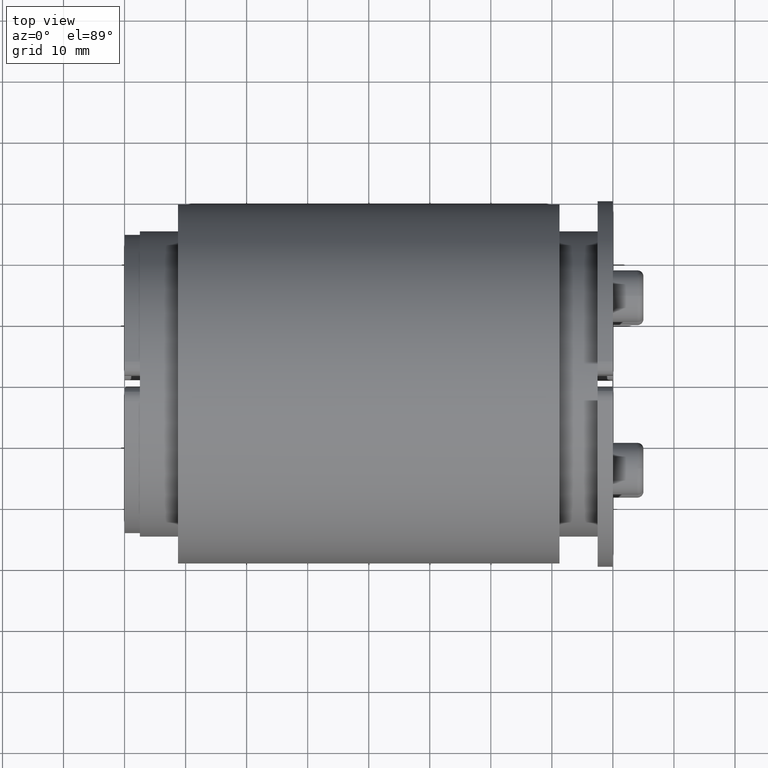
[diagram: clean part render]
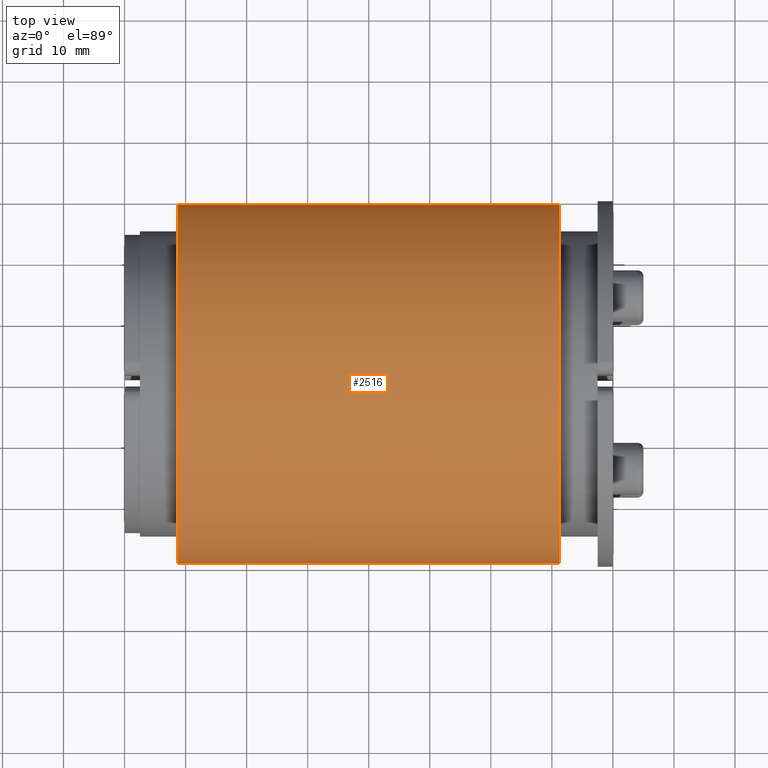
[diagram: same view with one face highlighted and labeled with its STEP entity id]
A machine part, top view. The second image highlights one B-rep face of the part: STEP entity #2516.
In plain terms, the highlighted cylindrical surface (partial cylindrical patch) has radius 29.4 mm, axis along (1, 0, 0).
Its self-contained STEP definition (entity closure, byte-faithful):
#2270=CARTESIAN_POINT('',(-31.250000000000000,-29.399999999999999,3.600343E-015));
#2271=VERTEX_POINT('',#2270);
#2272=CARTESIAN_POINT('',(31.250000000000000,-29.399999999999999,3.600343E-015));
#2273=VERTEX_POINT('',#2272);
#2274=CARTESIAN_POINT('',(-31.250000000000000,-29.399999999999999,3.600343E-015));
#2275=DIRECTION('',(1.0,0.0,0.0));
#2276=VECTOR('',#2275,62.500000000000000);
#2277=LINE('',#2274,#2276);
#2278=EDGE_CURVE('',#2271,#2273,#2277,.T.);
#2280=CARTESIAN_POINT('',(-31.250000000000000,29.399999999999999,3.600343E-015));
#2281=VERTEX_POINT('',#2280);
#2289=CARTESIAN_POINT('',(31.250000000000000,29.399999999999999,3.600343E-015));
#2290=VERTEX_POINT('',#2289);
#2291=CARTESIAN_POINT('',(31.250000000000000,29.399999999999999,3.600343E-015));
#2292=DIRECTION('',(-1.0,0.0,0.0));
#2293=VECTOR('',#2292,62.500000000000000);
#2294=LINE('',#2291,#2293);
#2295=EDGE_CURVE('',#2290,#2281,#2294,.T.);
#2484=CARTESIAN_POINT('',(-31.250000000000000,0.0,0.0));
#2485=DIRECTION('',(1.0,0.0,0.0));
#2486=DIRECTION('',(0.0,-1.0,0.0));
#2487=AXIS2_PLACEMENT_3D('',#2484,#2485,#2486);
#2488=CIRCLE('',#2487,29.399999999999999);
#2489=EDGE_CURVE('',#2281,#2271,#2488,.T.);
#2499=CARTESIAN_POINT('',(0.0,0.0,0.0));
#2500=DIRECTION('',(1.0,0.0,0.0));
#2501=DIRECTION('',(0.0,-1.0,0.0));
#2502=AXIS2_PLACEMENT_3D('',#2499,#2500,#2501);
#2503=CYLINDRICAL_SURFACE('',#2502,29.399999999999999);
#2504=ORIENTED_EDGE('',*,*,#2278,.T.);
#2505=CARTESIAN_POINT('',(31.250000000000000,0.0,0.0));
#2506=DIRECTION('',(-1.0,0.0,0.0));
#2507=DIRECTION('',(0.0,-1.0,0.0));
#2508=AXIS2_PLACEMENT_3D('',#2505,#2506,#2507);
#2509=CIRCLE('',#2508,29.399999999999999);
#2510=EDGE_CURVE('',#2273,#2290,#2509,.T.);
#2511=ORIENTED_EDGE('',*,*,#2510,.T.);
#2512=ORIENTED_EDGE('',*,*,#2295,.T.);
#2513=ORIENTED_EDGE('',*,*,#2489,.T.);
#2514=EDGE_LOOP('',(#2504,#2511,#2512,#2513));
#2515=FACE_OUTER_BOUND('',#2514,.T.);
#2516=ADVANCED_FACE('',(#2515),#2503,.T.);